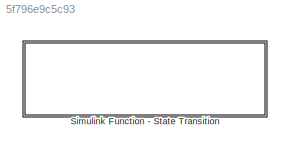
MODEL slx_5f796e9c5c93
KIND model
CONFIG AbsTol = auto
CONFIG EnableMultiTasking = off
CONFIG FixedStep = auto
CONFIG MaxStep = auto
CONFIG MinStep = auto
CONFIG RelTol = 1e-3
CONFIG SampleTimeConstraint = Unconstrained
CONFIG SolverName = VariableStepAuto
CONFIG StartTime = 0.0
CONFIG StopTime = 10.0
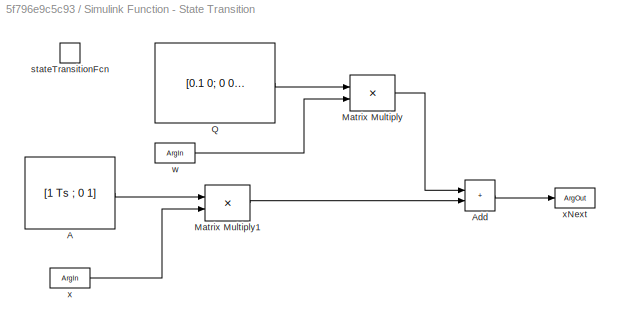
BLOCK [SubSystem] Simulink Function - State Transition
  Ports = [0, 0, 0, 1]
  RequestExecContextInheritance = off
  TreatAsAtomicUnit = on
BLOCK [Constant] Simulink Function - State Transition/A
  Value = [1 Ts ; 0 1]
BLOCK [Sum] Simulink Function - State Transition/Add
  IconShape = rectangular
  Ports = [2, 1]
BLOCK [Product] Simulink Function - State Transition/Matrix Multiply
  Multiplication = Matrix(*)
  Ports = [2, 1]
BLOCK [Product] Simulink Function - State Transition/Matrix Multiply1
  Multiplication = Matrix(*)
  Ports = [2, 1]
BLOCK [Constant] Simulink Function - State Transition/Q
  Value = [0.1 0; 0 0.1]
BLOCK [TriggerPort] Simulink Function - State Transition/stateTransitionFcn
  FunctionName = stateTransitionFcn
  FunctionVisibility = scoped
  IsSimulinkFunction = on
  Ports = []
  StatesWhenEnabling = held
  TriggerType = function-call
  VariantControl = (inherit)
BLOCK [ArgIn] Simulink Function - State Transition/w
  ArgumentName = w
  Port = 2
BLOCK [ArgIn] Simulink Function - State Transition/x
  ArgumentName = x
  DisableCoverage = on
BLOCK [ArgOut] Simulink Function - State Transition/xNext
  ArgumentName = xNext
  DisableCoverage = on
LINE Simulink Function - State Transition/A:1 -> Simulink Function - State Transition/Matrix Multiply1:1
LINE Simulink Function - State Transition/Add:1 -> Simulink Function - State Transition/xNext:1
LINE Simulink Function - State Transition/Matrix Multiply1:1 -> Simulink Function - State Transition/Add:2
LINE Simulink Function - State Transition/Matrix Multiply:1 -> Simulink Function - State Transition/Add:1
LINE Simulink Function - State Transition/Q:1 -> Simulink Function - State Transition/Matrix Multiply:1
LINE Simulink Function - State Transition/w:1 -> Simulink Function - State Transition/Matrix Multiply:2
LINE Simulink Function - State Transition/x:1 -> Simulink Function - State Transition/Matrix Multiply1:2
